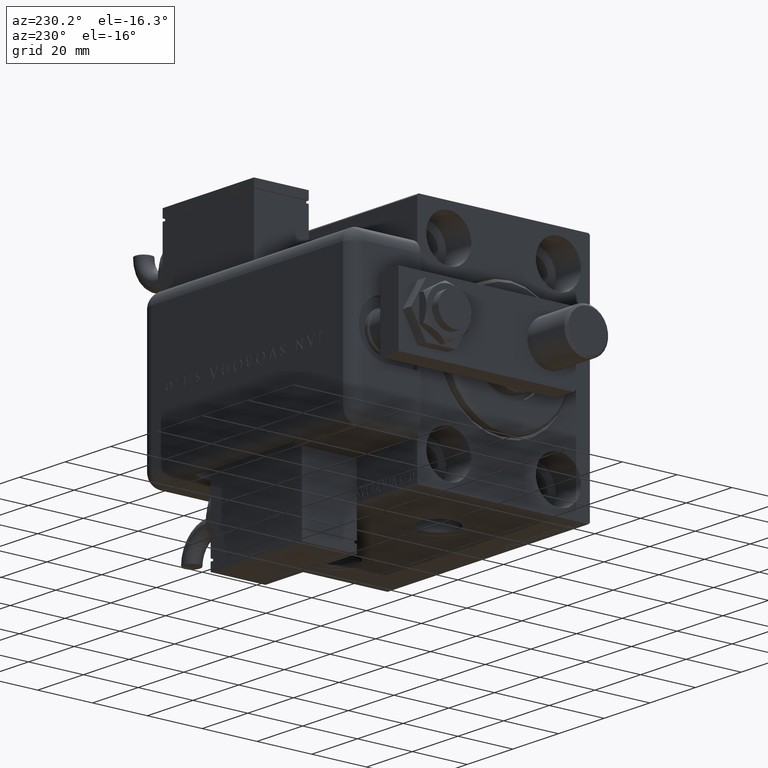
[diagram: clean part render]
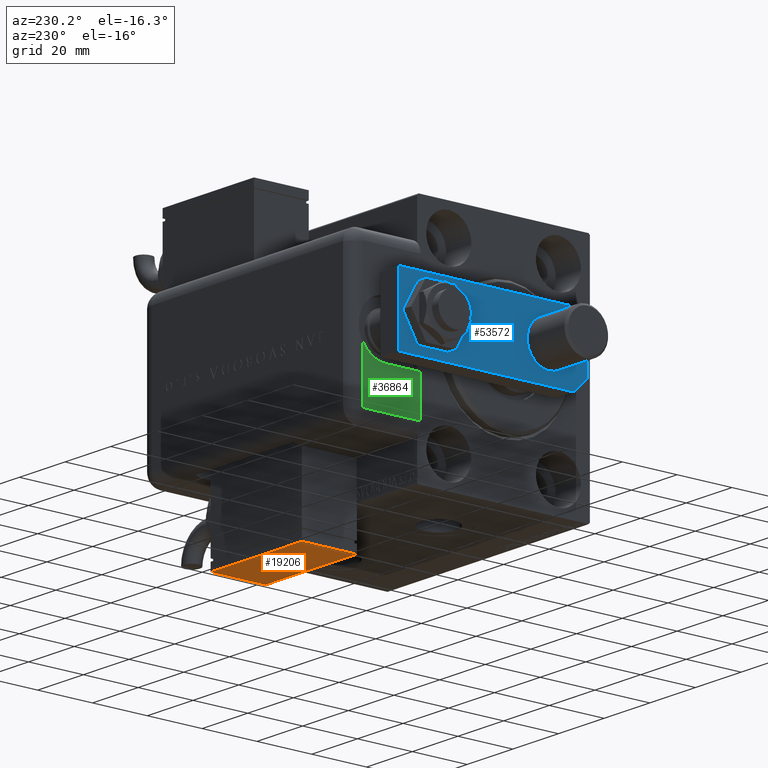
[diagram: same view with three faces highlighted in distinct colors, each labeled with its STEP entity id]
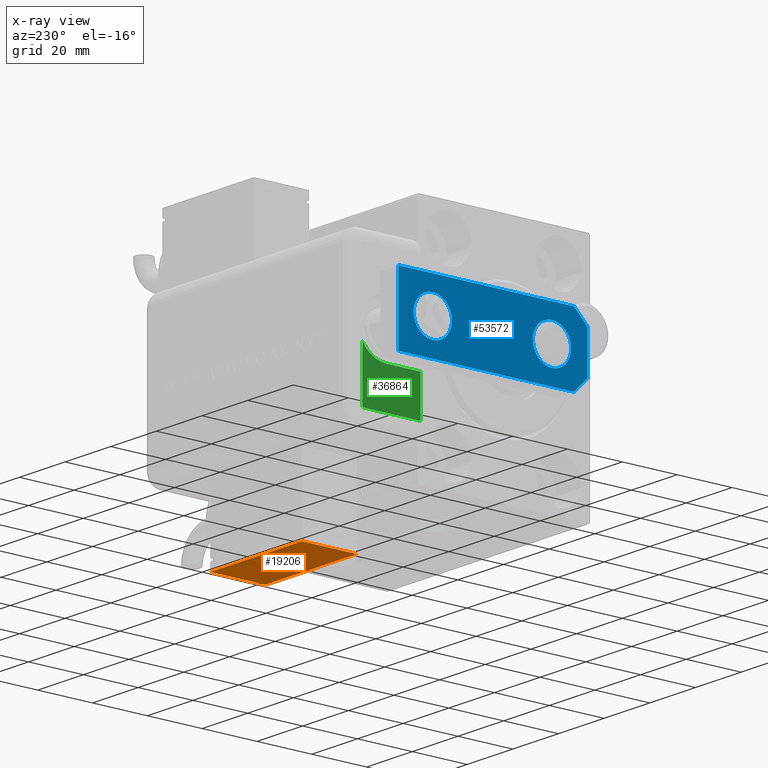
[diagram: x-ray of the same camera — body ghosted, the three highlighted faces saturated]
A machine part, auxiliary view with three faces highlighted in distinct colors.
The next image is the same camera in x-ray (body ghosted, the three faces saturated) — at least one of them is partly hidden behind the body in this view.
Their STEP definitions:

[orange] entity #19206 — the highlighted planar face has unit normal (0, 0, 1).
#89 = CARTESIAN_POINT ( 'NONE',  ( 20.00000000000005329, -17.49999999999996092, -9.999999999999998224 ) ) ;
#1290 = LINE ( 'NONE', #9832, #50729 ) ;
#2178 = VERTEX_POINT ( 'NONE', #55912 ) ;
#3419 = VECTOR ( 'NONE', #25535, 1000.000000000000000 ) ;
#9523 = CARTESIAN_POINT ( 'NONE',  ( -19.99999999999994316, -17.49999999999996092, -9.999999999999998224 ) ) ;
#9832 = CARTESIAN_POINT ( 'NONE',  ( -19.99999999999994316, -17.49999999999996092, -9.999999999999998224 ) ) ;
#9958 = DIRECTION ( 'NONE',  ( -1.000000000000000000, -0.000000000000000000, -0.000000000000000000 ) ) ;
#12378 = EDGE_CURVE ( 'NONE', #40738, #25308, #30100, .T. ) ;
#13861 = EDGE_CURVE ( 'NONE', #2178, #40738, #38275, .T. ) ;
#16174 = VECTOR ( 'NONE', #9958, 1000.000000000000000 ) ;
#18417 = ORIENTED_EDGE ( 'NONE', *, *, #58855, .T. ) ;
#19206 = ADVANCED_FACE ( 'NONE', ( #39697 ), #31476, .F. ) ;
#19363 = CARTESIAN_POINT ( 'NONE',  ( 20.00000000000005329, -17.49999999999996092, -9.999999999999998224 ) ) ;
#23268 = DIRECTION ( 'NONE',  ( 0.000000000000000000, 0.000000000000000000, 1.000000000000000000 ) ) ;
#23303 = VECTOR ( 'NONE', #23268, 1000.000000000000000 ) ;
#23350 = ORIENTED_EDGE ( 'NONE', *, *, #12378, .T. ) ;
#25308 = VERTEX_POINT ( 'NONE', #9523 ) ;
#25535 = DIRECTION ( 'NONE',  ( -0.000000000000000000, -0.000000000000000000, -1.000000000000000000 ) ) ;
#26610 = DIRECTION ( 'NONE',  ( 0.000000000000000000, -0.000000000000000000, 1.000000000000000000 ) ) ;
#26924 = EDGE_CURVE ( 'NONE', #37510, #2178, #47575, .T. ) ;
#28066 = CARTESIAN_POINT ( 'NONE',  ( -19.99999999999994316, -17.49999999999996092, 10.00000000000000000 ) ) ;
#30100 = LINE ( 'NONE', #53822, #3419 ) ;
#31476 = PLANE ( 'NONE',  #47267 ) ;
#37510 = VERTEX_POINT ( 'NONE', #19363 ) ;
#38275 = LINE ( 'NONE', #52867, #16174 ) ;
#39697 = FACE_OUTER_BOUND ( 'NONE', #56801, .T. ) ;
#40738 = VERTEX_POINT ( 'NONE', #28066 ) ;
#47267 = AXIS2_PLACEMENT_3D ( 'NONE', #54600, #50026, #26610 ) ;
#47575 = LINE ( 'NONE', #89, #23303 ) ;
#50026 = DIRECTION ( 'NONE',  ( 0.000000000000000000, 1.000000000000000000, 0.000000000000000000 ) ) ;
#50729 = VECTOR ( 'NONE', #57316, 1000.000000000000000 ) ;
#52867 = CARTESIAN_POINT ( 'NONE',  ( -19.99999999999994316, -17.49999999999996092, 10.00000000000000000 ) ) ;
#53822 = CARTESIAN_POINT ( 'NONE',  ( -19.99999999999994316, -17.49999999999996092, -9.999999999999998224 ) ) ;
#54600 = CARTESIAN_POINT ( 'NONE',  ( 0.000000000000000000, -17.49999999999996092, 0.000000000000000000 ) ) ;
#55912 = CARTESIAN_POINT ( 'NONE',  ( 20.00000000000005329, -17.49999999999996092, 10.00000000000000000 ) ) ;
#56801 = EDGE_LOOP ( 'NONE', ( #59597, #57338, #23350, #18417 ) ) ;
#57316 = DIRECTION ( 'NONE',  ( 1.000000000000000000, 0.000000000000000000, 0.000000000000000000 ) ) ;
#57338 = ORIENTED_EDGE ( 'NONE', *, *, #13861, .T. ) ;
#58855 = EDGE_CURVE ( 'NONE', #25308, #37510, #1290, .T. ) ;
#59597 = ORIENTED_EDGE ( 'NONE', *, *, #26924, .T. ) ;

[blue] entity #53572 — the highlighted planar face has unit normal (1, 0, -0).
#58 = CARTESIAN_POINT ( 'NONE',  ( 7.000000000000000000, 13.00000000000001066, 0.000000000000000000 ) ) ;
#431 = LINE ( 'NONE', #43358, #21364 ) ;
#735 = DIRECTION ( 'NONE',  ( -1.257045997084642611E-16, 1.000000000000000000, 0.000000000000000000 ) ) ;
#876 = FACE_BOUND ( 'NONE', #12025, .T. ) ;
#2492 = ORIENTED_EDGE ( 'NONE', *, *, #38350, .F. ) ;
#4617 = ORIENTED_EDGE ( 'NONE', *, *, #53078, .T. ) ;
#4771 = VERTEX_POINT ( 'NONE', #14617 ) ;
#5099 = CARTESIAN_POINT ( 'NONE',  ( 3.851859888774471706E-31, 13.00000000000001066, 0.000000000000000000 ) ) ;
#5521 = EDGE_CURVE ( 'NONE', #4771, #52534, #53085, .T. ) ;
#6932 = DIRECTION ( 'NONE',  ( 1.000000000000000000, 0.000000000000000000, 0.000000000000000000 ) ) ;
#7268 = CARTESIAN_POINT ( 'NONE',  ( -12.49999999999999822, 69.00000000000000000, 0.000000000000000000 ) ) ;
#9362 = EDGE_LOOP ( 'NONE', ( #4617, #53191 ) ) ;
#11247 = CARTESIAN_POINT ( 'NONE',  ( -12.49999999999999822, 69.00000000000000000, 0.000000000000000000 ) ) ;
#12025 = EDGE_LOOP ( 'NONE', ( #26006, #16409 ) ) ;
#12834 = DIRECTION ( 'NONE',  ( 0.000000000000000000, 0.000000000000000000, 1.000000000000000000 ) ) ;
#13802 = CARTESIAN_POINT ( 'NONE',  ( -7.000000000000000000, 13.00000000000001066, 0.000000000000000000 ) ) ;
#13909 = ORIENTED_EDGE ( 'NONE', *, *, #45688, .F. ) ;
#14617 = CARTESIAN_POINT ( 'NONE',  ( 12.50000000000001066, 5.000000000000003553, 0.000000000000000000 ) ) ;
#14666 = CARTESIAN_POINT ( 'NONE',  ( 12.50000000000001066, 5.000000000000004441, 0.000000000000000000 ) ) ;
#14669 = AXIS2_PLACEMENT_3D ( 'NONE', #47761, #43506, #34380 ) ;
#14819 = EDGE_CURVE ( 'NONE', #34981, #29219, #44333, .T. ) ;
#15566 = VERTEX_POINT ( 'NONE', #7268 ) ;
#15612 = AXIS2_PLACEMENT_3D ( 'NONE', #54119, #53517, #6932 ) ;
#16409 = ORIENTED_EDGE ( 'NONE', *, *, #26361, .T. ) ;
#16433 = VECTOR ( 'NONE', #23557, 1000.000000000000000 ) ;
#17341 = ORIENTED_EDGE ( 'NONE', *, *, #47649, .T. ) ;
#19771 = FACE_BOUND ( 'NONE', #9362, .T. ) ;
#19805 = ORIENTED_EDGE ( 'NONE', *, *, #26173, .T. ) ;
#19830 = LINE ( 'NONE', #14666, #60125 ) ;
#20040 = AXIS2_PLACEMENT_3D ( 'NONE', #5099, #27677, #42559 ) ;
#20226 = DIRECTION ( 'NONE',  ( -1.000000000000000000, 0.000000000000000000, 0.000000000000000000 ) ) ;
#20401 = LINE ( 'NONE', #11247, #25063 ) ;
#21270 = VERTEX_POINT ( 'NONE', #44288 ) ;
#21364 = VECTOR ( 'NONE', #20226, 1000.000000000000000 ) ;
#23557 = DIRECTION ( 'NONE',  ( -0.7071067811865450192, 0.7071067811865500152, -0.000000000000000000 ) ) ;
#24707 = DIRECTION ( 'NONE',  ( -0.7071067811865485719, -0.7071067811865465735, -0.000000000000000000 ) ) ;
#25063 = VECTOR ( 'NONE', #30132, 1000.000000000000000 ) ;
#25901 = CARTESIAN_POINT ( 'NONE',  ( 12.50000000000000178, 69.00000000000000000, 0.000000000000000000 ) ) ;
#26006 = ORIENTED_EDGE ( 'NONE', *, *, #57143, .T. ) ;
#26060 = CARTESIAN_POINT ( 'NONE',  ( -6.999999999999998224, 56.50000000000000711, 0.000000000000000000 ) ) ;
#26173 = EDGE_CURVE ( 'NONE', #21270, #28317, #32694, .T. ) ;
#26361 = EDGE_CURVE ( 'NONE', #34490, #48207, #29084, .T. ) ;
#27187 = CARTESIAN_POINT ( 'NONE',  ( 3.851859888774471706E-31, 13.00000000000001066, 0.000000000000000000 ) ) ;
#27677 = DIRECTION ( 'NONE',  ( 0.000000000000000000, 0.000000000000000000, 1.000000000000000000 ) ) ;
#28317 = VERTEX_POINT ( 'NONE', #53079 ) ;
#28476 = CARTESIAN_POINT ( 'NONE',  ( 12.50000000000001066, 0.000000000000000000, 0.000000000000000000 ) ) ;
#29084 = CIRCLE ( 'NONE', #32001, 6.999999999999998224 ) ;
#29219 = VERTEX_POINT ( 'NONE', #13802 ) ;
#29509 = FACE_OUTER_BOUND ( 'NONE', #54492, .T. ) ;
#30132 = DIRECTION ( 'NONE',  ( -1.759864395918499754E-16, -1.000000000000000000, 0.000000000000000000 ) ) ;
#32001 = AXIS2_PLACEMENT_3D ( 'NONE', #45114, #12834, #49970 ) ;
#32694 = LINE ( 'NONE', #33290, #16433 ) ;
#33287 = VECTOR ( 'NONE', #51301, 1000.000000000000000 ) ;
#33290 = CARTESIAN_POINT ( 'NONE',  ( -7.500000000000040856, 0.000000000000000000, 0.000000000000000000 ) ) ;
#34380 = DIRECTION ( 'NONE',  ( 1.000000000000000000, 0.000000000000000000, 0.000000000000000000 ) ) ;
#34490 = VERTEX_POINT ( 'NONE', #49200 ) ;
#34981 = VERTEX_POINT ( 'NONE', #58 ) ;
#38350 = EDGE_CURVE ( 'NONE', #21270, #58386, #42768, .T. ) ;
#38936 = PLANE ( 'NONE',  #14669 ) ;
#38965 = AXIS2_PLACEMENT_3D ( 'NONE', #27187, #41775, #59735 ) ;
#41775 = DIRECTION ( 'NONE',  ( 0.000000000000000000, 0.000000000000000000, 1.000000000000000000 ) ) ;
#41864 = CIRCLE ( 'NONE', #15612, 6.999999999999998224 ) ;
#42559 = DIRECTION ( 'NONE',  ( 1.000000000000000000, 0.000000000000000000, 0.000000000000000000 ) ) ;
#42768 = LINE ( 'NONE', #52495, #33287 ) ;
#43358 = CARTESIAN_POINT ( 'NONE',  ( 12.50000000000000178, 69.00000000000000000, 0.000000000000000000 ) ) ;
#43506 = DIRECTION ( 'NONE',  ( -0.000000000000000000, 0.000000000000000000, 1.000000000000000000 ) ) ;
#44288 = CARTESIAN_POINT ( 'NONE',  ( -7.500000000000040856, 0.000000000000000000, 0.000000000000000000 ) ) ;
#44333 = CIRCLE ( 'NONE', #20040, 7.000000000000000000 ) ;
#45114 = CARTESIAN_POINT ( 'NONE',  ( 0.000000000000000000, 56.50000000000000711, 0.000000000000000000 ) ) ;
#45688 = EDGE_CURVE ( 'NONE', #15566, #28317, #20401, .T. ) ;
#47649 = EDGE_CURVE ( 'NONE', #4771, #58386, #19830, .T. ) ;
#47761 = CARTESIAN_POINT ( 'NONE',  ( 0.000000000000000000, 0.000000000000000000, 0.000000000000000000 ) ) ;
#48207 = VERTEX_POINT ( 'NONE', #26060 ) ;
#49200 = CARTESIAN_POINT ( 'NONE',  ( 6.999999999999998224, 56.50000000000000711, 0.000000000000000000 ) ) ;
#49862 = ORIENTED_EDGE ( 'NONE', *, *, #5521, .F. ) ;
#49970 = DIRECTION ( 'NONE',  ( 1.000000000000000000, 0.000000000000000000, 0.000000000000000000 ) ) ;
#51301 = DIRECTION ( 'NONE',  ( 1.000000000000000000, 0.000000000000000000, 0.000000000000000000 ) ) ;
#52495 = CARTESIAN_POINT ( 'NONE',  ( -12.50000000000001066, 0.000000000000000000, 0.000000000000000000 ) ) ;
#52534 = VERTEX_POINT ( 'NONE', #25901 ) ;
#53078 = EDGE_CURVE ( 'NONE', #29219, #34981, #56465, .T. ) ;
#53079 = CARTESIAN_POINT ( 'NONE',  ( -12.50000000000000888, 5.000000000000004441, 0.000000000000000000 ) ) ;
#53085 = LINE ( 'NONE', #28476, #59753 ) ;
#53191 = ORIENTED_EDGE ( 'NONE', *, *, #14819, .T. ) ;
#53517 = DIRECTION ( 'NONE',  ( 0.000000000000000000, 0.000000000000000000, 1.000000000000000000 ) ) ;
#53572 = ADVANCED_FACE ( 'NONE', ( #29509, #876, #19771 ), #38936, .F. ) ;
#54119 = CARTESIAN_POINT ( 'NONE',  ( 0.000000000000000000, 56.50000000000000711, 0.000000000000000000 ) ) ;
#54492 = EDGE_LOOP ( 'NONE', ( #2492, #19805, #13909, #56043, #49862, #17341 ) ) ;
#55062 = EDGE_CURVE ( 'NONE', #52534, #15566, #431, .T. ) ;
#56043 = ORIENTED_EDGE ( 'NONE', *, *, #55062, .F. ) ;
#56465 = CIRCLE ( 'NONE', #38965, 7.000000000000000000 ) ;
#57143 = EDGE_CURVE ( 'NONE', #48207, #34490, #41864, .T. ) ;
#58386 = VERTEX_POINT ( 'NONE', #60129 ) ;
#59735 = DIRECTION ( 'NONE',  ( 1.000000000000000000, 0.000000000000000000, 0.000000000000000000 ) ) ;
#59753 = VECTOR ( 'NONE', #735, 1000.000000000000000 ) ;
#60125 = VECTOR ( 'NONE', #24707, 1000.000000000000000 ) ;
#60129 = CARTESIAN_POINT ( 'NONE',  ( 7.499999999999992895, 0.000000000000000000, 0.000000000000000000 ) ) ;

[green] entity #36864 — the highlighted planar face has unit normal (-1, 0, 0).
#415 = LINE ( 'NONE', #4580, #57964 ) ;
#1658 = CARTESIAN_POINT ( 'NONE',  ( 23.99999999999999289, 20.79999999999998295, 92.00000000000000000 ) ) ;
#2209 = DIRECTION ( 'NONE',  ( 0.000000000000000000, 0.000000000000000000, 1.000000000000000000 ) ) ;
#4580 = CARTESIAN_POINT ( 'NONE',  ( -28.99999999999999645, -9.421223957302265857E-15, 92.00000000000000000 ) ) ;
#6879 = CARTESIAN_POINT ( 'NONE',  ( -23.99999999999999289, 21.21742430504414045, 92.00000000000000000 ) ) ;
#8010 = VERTEX_POINT ( 'NONE', #29195 ) ;
#9493 = CARTESIAN_POINT ( 'NONE',  ( -10.00000000000000178, -8.673617379884035472E-16, 92.00000000000000000 ) ) ;
#10388 = DIRECTION ( 'NONE',  ( 1.387778820721720319E-16, -1.000000000000000000, -0.000000000000000000 ) ) ;
#10710 = VECTOR ( 'NONE', #10388, 1000.000000000000000 ) ;
#10746 = ORIENTED_EDGE ( 'NONE', *, *, #15293, .T. ) ;
#10864 = DIRECTION ( 'NONE',  ( -1.000000000000000000, 0.000000000000000000, -0.000000000000000000 ) ) ;
#12676 = VERTEX_POINT ( 'NONE', #39080 ) ;
#12759 = EDGE_CURVE ( 'NONE', #60173, #49470, #18046, .T. ) ;
#14324 = CARTESIAN_POINT ( 'NONE',  ( -24.41742430504416106, 20.79999999999998295, 92.00000000000000000 ) ) ;
#15293 = EDGE_CURVE ( 'NONE', #8010, #12676, #415, .T. ) ;
#17275 = VERTEX_POINT ( 'NONE', #14324 ) ;
#17491 = EDGE_CURVE ( 'NONE', #60173, #31753, #52869, .T. ) ;
#18046 = CIRCLE ( 'NONE', #22922, 10.00000000000000178 ) ;
#18640 = CIRCLE ( 'NONE', #26429, 0.4174243050441631131 ) ;
#20256 = DIRECTION ( 'NONE',  ( 0.000000000000000000, 0.000000000000000000, 1.000000000000000000 ) ) ;
#22922 = AXIS2_PLACEMENT_3D ( 'NONE', #57934, #2209, #34819 ) ;
#23668 = CARTESIAN_POINT ( 'NONE',  ( -23.99999999999999645, 20.79999999999998295, 92.00000000000000000 ) ) ;
#26429 = AXIS2_PLACEMENT_3D ( 'NONE', #23668, #46196, #41325 ) ;
#27977 = VECTOR ( 'NONE', #10864, 1000.000000000000000 ) ;
#28241 = ORIENTED_EDGE ( 'NONE', *, *, #17491, .T. ) ;
#29195 = CARTESIAN_POINT ( 'NONE',  ( -24.41742430504415751, -1.040834085586084257E-14, 92.00000000000000000 ) ) ;
#29265 = CARTESIAN_POINT ( 'NONE',  ( -10.00000000000000355, 12.49999964024999599, 92.00000000000000000 ) ) ;
#29306 = ORIENTED_EDGE ( 'NONE', *, *, #33458, .T. ) ;
#29398 = FACE_OUTER_BOUND ( 'NONE', #39643, .T. ) ;
#31753 = VERTEX_POINT ( 'NONE', #53711 ) ;
#32841 = EDGE_CURVE ( 'NONE', #49470, #12676, #46344, .T. ) ;
#33458 = EDGE_CURVE ( 'NONE', #31753, #17275, #18640, .T. ) ;
#33807 = CARTESIAN_POINT ( 'NONE',  ( -24.41742430504415751, -1.040834085586084257E-14, 92.00000000000000000 ) ) ;
#34265 = DIRECTION ( 'NONE',  ( 1.000000000000000000, 0.000000000000000000, -0.000000000000000000 ) ) ;
#34819 = DIRECTION ( 'NONE',  ( 1.000000000000000000, 0.000000000000000000, 0.000000000000000000 ) ) ;
#36864 = ADVANCED_FACE ( 'NONE', ( #29398 ), #47948, .T. ) ;
#37174 = DIRECTION ( 'NONE',  ( 1.000000000000000000, 0.000000000000000000, 0.000000000000000000 ) ) ;
#38670 = EDGE_CURVE ( 'NONE', #17275, #8010, #56628, .T. ) ;
#39080 = CARTESIAN_POINT ( 'NONE',  ( -10.00000000000000178, -8.673617379884035472E-16, 92.00000000000000000 ) ) ;
#39643 = EDGE_LOOP ( 'NONE', ( #44903, #59132, #28241, #29306, #52401, #10746 ) ) ;
#41325 = DIRECTION ( 'NONE',  ( 1.000000000000000000, 0.000000000000000000, 0.000000000000000000 ) ) ;
#42933 = AXIS2_PLACEMENT_3D ( 'NONE', #1658, #20256, #34265 ) ;
#44903 = ORIENTED_EDGE ( 'NONE', *, *, #32841, .F. ) ;
#46196 = DIRECTION ( 'NONE',  ( 0.000000000000000000, 0.000000000000000000, 1.000000000000000000 ) ) ;
#46344 = LINE ( 'NONE', #9493, #10710 ) ;
#47485 = DIRECTION ( 'NONE',  ( -0.000000000000000000, -1.000000000000000000, 0.000000000000000000 ) ) ;
#47948 = PLANE ( 'NONE',  #42933 ) ;
#49470 = VERTEX_POINT ( 'NONE', #29265 ) ;
#52401 = ORIENTED_EDGE ( 'NONE', *, *, #38670, .T. ) ;
#52869 = LINE ( 'NONE', #6879, #27977 ) ;
#53711 = CARTESIAN_POINT ( 'NONE',  ( -23.99999999999999645, 21.21742430504414045, 92.00000000000000000 ) ) ;
#56628 = LINE ( 'NONE', #33807, #57603 ) ;
#57566 = CARTESIAN_POINT ( 'NONE',  ( -4.899643580265686360, 21.21742430504414045, 92.00000000000000000 ) ) ;
#57603 = VECTOR ( 'NONE', #47485, 1000.000000000000000 ) ;
#57934 = CARTESIAN_POINT ( 'NONE',  ( -1.734723475976807094E-15, 12.49999964024999599, 92.00000000000000000 ) ) ;
#57964 = VECTOR ( 'NONE', #37174, 1000.000000000000000 ) ;
#59132 = ORIENTED_EDGE ( 'NONE', *, *, #12759, .F. ) ;
#60173 = VERTEX_POINT ( 'NONE', #57566 ) ;